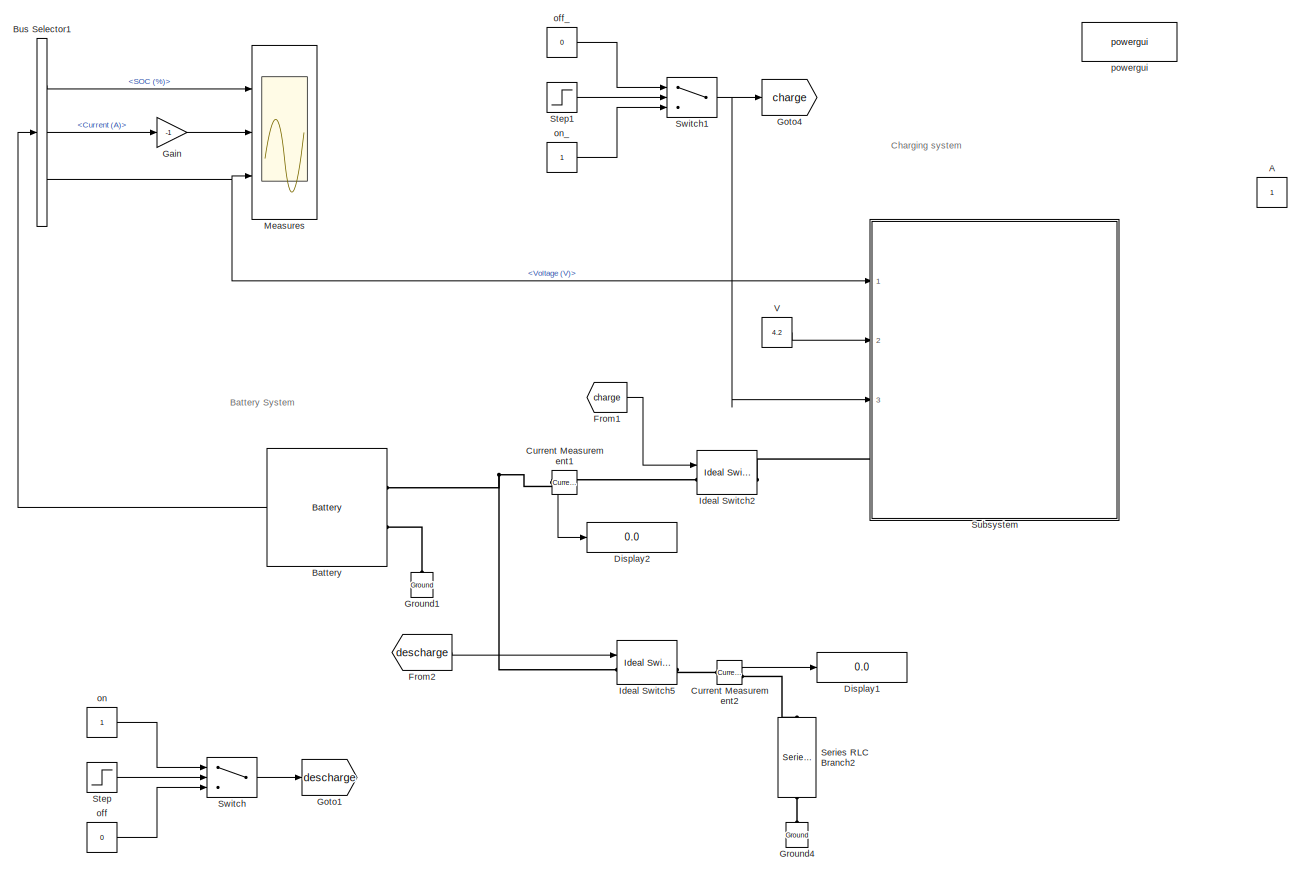
[diagram: root canvas - part 1/1, most of the canvas]
MODEL slx_267a56d96aae
KIND model
CONFIG AbsTol = auto
CONFIG EnableMultiTasking = off
CONFIG FixedStep = auto
CONFIG MaxStep = auto
CONFIG MinStep = auto
CONFIG RelTol = 1e-3
CONFIG SampleTimeConstraint = Unconstrained
CONFIG Solver = VariableStepAuto
CONFIG SolverName = VariableStepAuto
CONFIG StartTime = 0.0
CONFIG StopTime = 50000
BLOCK [Constant] A
BLOCK [Reference] Battery  REF=electricdrivelib/Extra Sources/Battery
  Ports = [0, 1, 0, 0, 0, 2]
  SourceBlock = electricdrivelib/Extra Sources/Battery
  SourceProductBaseCode = PS
  SourceProductName = Simscape Electrical
  SourceType = Battery
BLOCK [BusSelector] Bus Selector1
  OutputAsBus = off
  OutputSignals = SOC (%),Current (A),Voltage (V)
  Ports = [1, 3]
BLOCK [Reference] Current Measurement1  REF=powerlib/Measurements/Current Measurement
  Ports = [0, 1, 0, 0, 0, 1, 1]
  SourceBlock = powerlib/Measurements/Current Measurement
  SourceProductBaseCode = PS
  SourceProductName = Simscape Electrical
  SourceType = Current Measurement
  UserDataPersistent = on
BLOCK [Reference] Current Measurement2  REF=powerlib/Measurements/Current Measurement
  Ports = [0, 1, 0, 0, 0, 1, 1]
  SourceBlock = powerlib/Measurements/Current Measurement
  SourceProductBaseCode = PS
  SourceProductName = Simscape Electrical
  SourceType = Current Measurement
  UserDataPersistent = on
BLOCK [Display] Display1
  Decimation = 1
  Ports = [1]
BLOCK [Display] Display2
  Decimation = 1
  Ports = [1]
BLOCK [From] From1
  GotoTag = charge
BLOCK [From] From2
  GotoTag = descharge
BLOCK [Gain] Gain
  Gain = -1
  OutDataTypeStr = Inherit: Inherit via internal rule
  ParamDataTypeStr = Inherit: Inherit via internal rule
  SaturateOnIntegerOverflow = off
BLOCK [Goto] Goto1
  GotoTag = descharge
BLOCK [Goto] Goto4
  GotoTag = charge
BLOCK [Reference] Ground1  REF=powerlib/Elements/Ground
  Ports = [0, 0, 0, 0, 0, 1]
  SourceBlock = powerlib/Elements/Ground
  SourceProductBaseCode = PS
  SourceProductName = Simscape Electrical
  SourceType = Ground
BLOCK [Reference] Ground4  REF=powerlib/Elements/Ground
  Ports = [0, 0, 0, 0, 0, 1]
  SourceBlock = powerlib/Elements/Ground
  SourceProductBaseCode = PS
  SourceProductName = Simscape Electrical
  SourceType = Ground
BLOCK [Reference] Ideal Switch2  REF=powerlib/Power
Electronics/Ideal Switch
  Ports = [1, 1, 0, 0, 0, 1, 1]
  SourceBlock = powerlib/Power\nElectronics/Ideal Switch
  SourceProductBaseCode = PS
  SourceProductName = Simscape Electrical
  SourceType = Ideal Switch
BLOCK [Reference] Ideal Switch5  REF=powerlib/Power
Electronics/Ideal Switch
  Ports = [1, 1, 0, 0, 0, 1, 1]
  SourceBlock = powerlib/Power\nElectronics/Ideal Switch
  SourceProductBaseCode = PS
  SourceProductName = Simscape Electrical
  SourceType = Ideal Switch
BLOCK [Scope] Measures 
  Floating = off
  NumInputPorts = 3
  Ports = [3]
  ScopeSpecificationString = Simulink.scopes.TimeScopeBlockCfg('CurrentConfiguration', extmgr.ConfigurationSet(extmgr.Configuration('Core','General UI',true),extmgr.Configuration('Core','Source UI',true),extmgr.Configuration('Sources','WiredSimulink',true),extmgr.Configuration('Visuals','Time Domain',true,'SerializedDisplays',{struct('MinYLimReal','-12.39726','MaxYLimReal','111.57534','YLabelReal','','MinYLimMag','0.00000','M...<+3149ch>
BLOCK [Reference] Series RLC Branch2  REF=powerlib/Elements/Series RLC Branch
  Ports = [0, 0, 0, 0, 0, 1, 1]
  SourceBlock = powerlib/Elements/Series RLC Branch
  SourceProductBaseCode = PS
  SourceProductName = Simscape Electrical
  SourceType = Series RLC Branch
BLOCK [Step] Step
  SampleTime = 0
  Time = 12922.8
BLOCK [Step] Step1
  SampleTime = 0
  Time = 12922.8
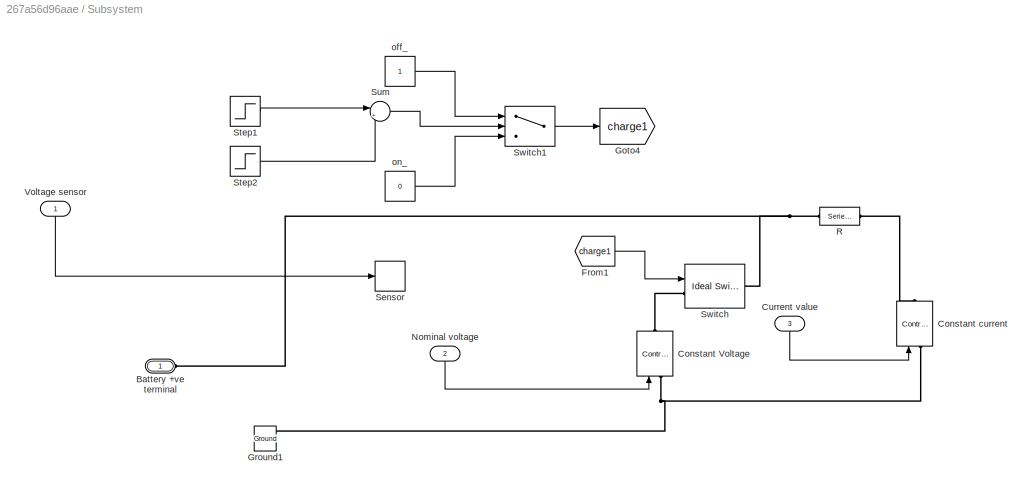
BLOCK [SubSystem] Subsystem
  AttributesFormatString = MCU_S1
  Ports = [3, 0, 0, 0, 0, 1]
  RequestExecContextInheritance = off
BLOCK [PMIOPort] Subsystem/Battery +ve terminal
  Side = Left
BLOCK [Reference] Subsystem/Constant Voltage  REF=powerlib/Electrical
Sources/Controlled Voltage Source
  Ports = [1, 0, 0, 0, 0, 1, 1]
  SourceBlock = powerlib/Electrical\nSources/Controlled Voltage Source
  SourceProductBaseCode = PS
  SourceProductName = Simscape Electrical
  SourceType = Controlled Voltage Source
BLOCK [Reference] Subsystem/Constant current   REF=powerlib/Electrical
Sources/Controlled Current Source
  Ports = [1, 0, 0, 0, 0, 1, 1]
  SourceBlock = powerlib/Electrical\nSources/Controlled Current Source
  SourceProductBaseCode = PS
  SourceProductName = Simscape Electrical
  SourceType = Controlled Current Source
BLOCK [Inport] Subsystem/Current value
  IconDisplay = Port number
  Port = 3
BLOCK [From] Subsystem/From1
  GotoTag = charge1
BLOCK [Goto] Subsystem/Goto4
  GotoTag = charge1
BLOCK [Reference] Subsystem/Ground1  REF=powerlib/Elements/Ground
  Ports = [0, 0, 0, 0, 0, 1]
  SourceBlock = powerlib/Elements/Ground
  SourceProductBaseCode = PS
  SourceProductName = Simscape Electrical
  SourceType = Ground
BLOCK [Inport] Subsystem/Nominal voltage
  IconDisplay = Port number
  Port = 2
BLOCK [Reference] Subsystem/R  REF=powerlib/Elements/Series RLC Branch
  Ports = [0, 0, 0, 0, 0, 1, 1]
  SourceBlock = powerlib/Elements/Series RLC Branch
  SourceProductBaseCode = PS
  SourceProductName = Simscape Electrical
  SourceType = Series RLC Branch
BLOCK [Relay] Subsystem/Sensor
  Commented = on
  OffSwitchValue = 4.2
  OnSwitchValue = 4.2
BLOCK [Step] Subsystem/Step1
  SampleTime = 0
  Time = 11670.75
BLOCK [Step] Subsystem/Step2
  SampleTime = 0
  Time = 12922.8
BLOCK [Sum] Subsystem/Sum
  IconShape = round
  InputSameDT = off
  Inputs = |+-
  OutDataTypeStr = Inherit: Inherit via internal rule
  Ports = [2, 1]
  SaturateOnIntegerOverflow = off
BLOCK [Reference] Subsystem/Switch  REF=powerlib/Power
Electronics/Ideal Switch
  Ports = [1, 0, 0, 0, 0, 1, 1]
  SourceBlock = powerlib/Power\nElectronics/Ideal Switch
  SourceProductBaseCode = PS
  SourceProductName = Simscape Electrical
  SourceType = Ideal Switch
BLOCK [Switch] Subsystem/Switch1
  InputSameDT = off
  SaturateOnIntegerOverflow = off
  Threshold = 1
BLOCK [Inport] Subsystem/Voltage sensor
  IconDisplay = Port number
BLOCK [Constant] Subsystem/off_
BLOCK [Constant] Subsystem/on_
  Value = 0
BLOCK [Switch] Switch
  InputSameDT = off
  SaturateOnIntegerOverflow = off
  Threshold = 1
BLOCK [Switch] Switch1
  InputSameDT = off
  SaturateOnIntegerOverflow = off
  Threshold = 1
BLOCK [Constant] V
  Value = 4.2
BLOCK [Constant] off
  Value = 0
BLOCK [Constant] off_
  Value = 0
BLOCK [Constant] on
BLOCK [Constant] on_
BLOCK [Reference] powergui  REF=powerlib/powergui
  Ports = []
  SourceBlock = powerlib/powergui
  SourceProductBaseCode = PS
  SourceProductName = Simscape Electrical
  SourceType = PSB option menu block
ANNOTATION (root): Battery System
ANNOTATION (root): Charging system
LINE Battery:1 -> Bus Selector1:1
LINE Bus Selector1:1 -> Measures :1
LINE Bus Selector1:2 -> Gain:1
NET Bus Selector1:3 -> Measures :3, Subsystem:1
LINE Current Measurement1:1 -> Display2:1
LINE Current Measurement2:1 -> Display1:1
LINE From1:1 -> Ideal Switch2:1
LINE From2:1 -> Ideal Switch5:1
LINE Gain:1 -> Measures :2
LINE Step1:1 -> Switch1:2
LINE Step:1 -> Switch:2
LINE Subsystem/Current value:1 -> Subsystem/Constant current :1
LINE Subsystem/From1:1 -> Subsystem/Switch:1
LINE Subsystem/Nominal voltage:1 -> Subsystem/Constant Voltage:1
LINE Subsystem/Step1:1 -> Subsystem/Sum:1
LINE Subsystem/Step2:1 -> Subsystem/Sum:2
LINE Subsystem/Sum:1 -> Subsystem/Switch1:2
LINE Subsystem/Switch1:1 -> Subsystem/Goto4:1
LINE Subsystem/Voltage sensor:1 -> Subsystem/Sensor:1
LINE Subsystem/off_:1 -> Subsystem/Switch1:1
LINE Subsystem/on_:1 -> Subsystem/Switch1:3
NET Switch1:1 -> Goto4:1, Subsystem:3
LINE Switch:1 -> Goto1:1
LINE V:1 -> Subsystem:2
LINE off:1 -> Switch:3
LINE off_:1 -> Switch1:1
LINE on:1 -> Switch:1
LINE on_:1 -> Switch1:3
PNET net1: Battery:LConn1 -- Current Measurement1:RConn1 -- Ideal Switch5:LConn1
PLINE Battery:LConn2 -- Ground1:LConn1
PLINE Current Measurement1:LConn1 -- Ideal Switch2:LConn1
PLINE Current Measurement2:LConn1 -- Ideal Switch5:RConn1
PLINE Current Measurement2:RConn1 -- Series RLC Branch2:LConn1
PLINE Ground4:LConn1 -- Series RLC Branch2:RConn1
PLINE Ideal Switch2:RConn1 -- Subsystem:LConn1
PNET net2: Subsystem/Battery +ve terminal:RConn1 -- Subsystem/R:LConn1 -- Subsystem/Switch:RConn1
PNET net3: Subsystem/Constant Voltage:LConn1 -- Subsystem/Constant current :LConn1 -- Subsystem/Ground1:LConn1
PLINE Subsystem/Constant Voltage:RConn1 -- Subsystem/Switch:LConn1
PLINE Subsystem/Constant current :RConn1 -- Subsystem/R:RConn1
note: NET lines group one-source signal fan-out (src -> all destinations, sorted); 1:1 wires keep LINE; PNET lines group multi-terminal physical nets as a canonical sorted terminal list (undirected conserving connections); 2-terminal nets keep the pairwise PLINE form
